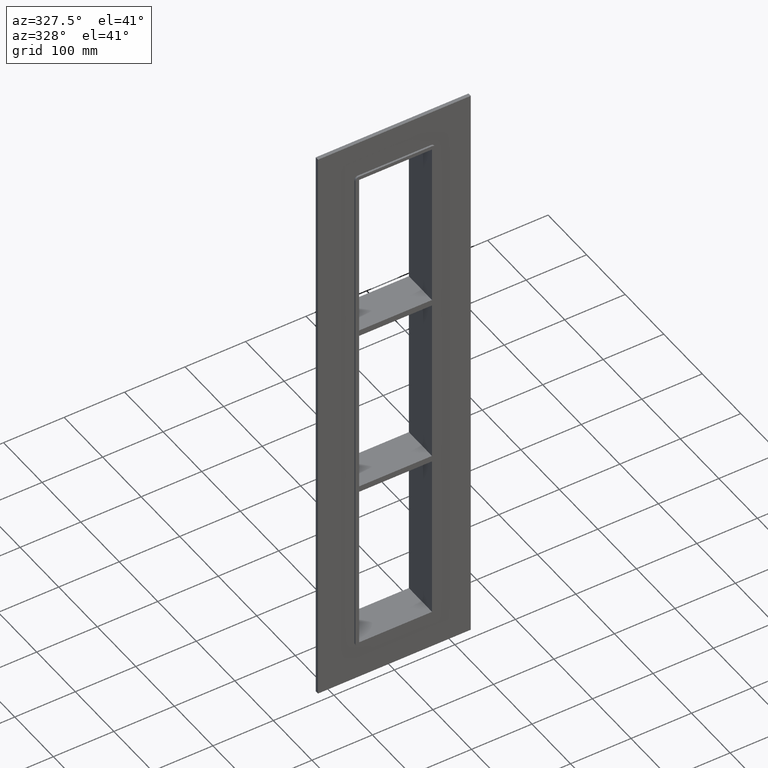
[diagram: clean part render]
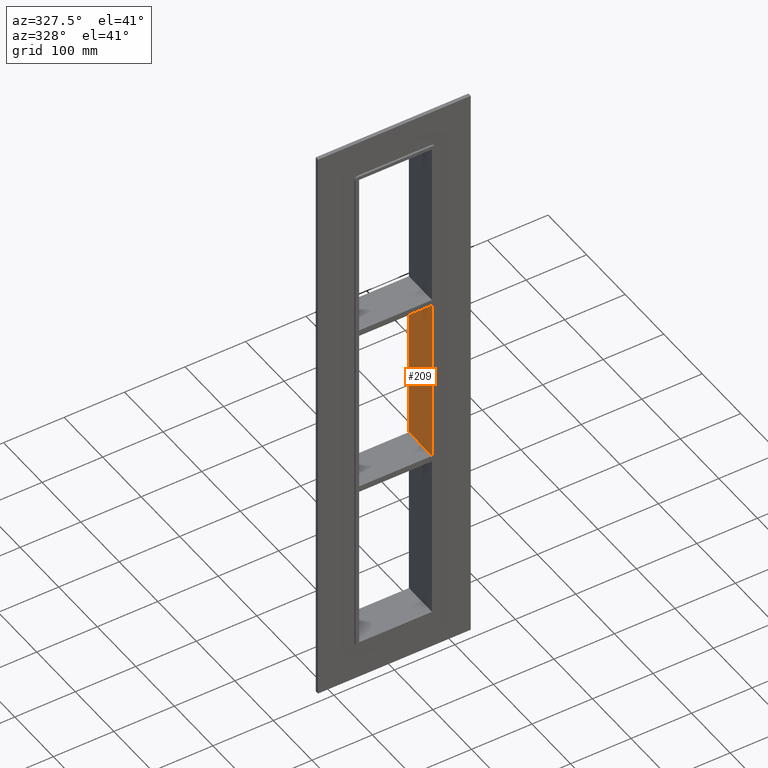
[diagram: same view with one face highlighted and labeled with its STEP entity id]
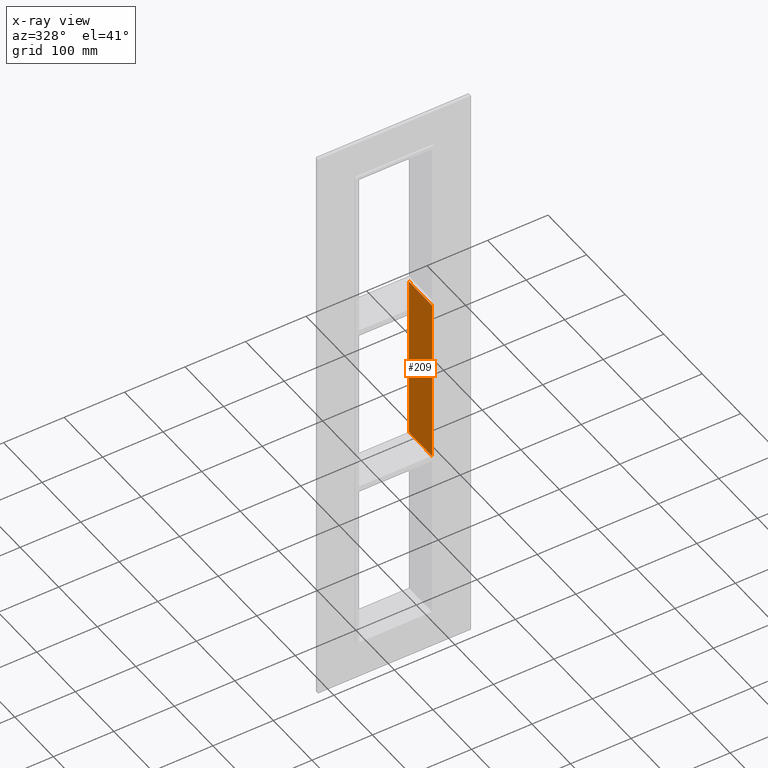
[diagram: x-ray of the same camera — body ghosted, the highlighted face saturated]
A machine part, auxiliary view. The second image highlights one B-rep face of the part: STEP entity #209.
The next image is the same camera in x-ray: the body ghosted, the highlighted face saturated — about 0% of this face is hidden behind the body in this view.
In plain terms, the highlighted planar face has unit normal (1, 0, 0).
Its self-contained STEP definition (entity closure, byte-faithful):
#73=CARTESIAN_POINT('',(60.249999999996362,-3.0,138.99999999999065));
#74=VERTEX_POINT('',#73);
#91=CARTESIAN_POINT('',(60.249999999996355,57.0,138.99999999999065));
#92=VERTEX_POINT('',#91);
#99=CARTESIAN_POINT('',(60.25,-3.0,138.99999999999068));
#100=DIRECTION('',(0.0,1.0,0.0));
#101=VECTOR('',#100,60.000000000000007);
#102=LINE('',#99,#101);
#103=EDGE_CURVE('',#74,#92,#102,.T.);
#179=CARTESIAN_POINT('',(60.25,0.0,427.0));
#180=DIRECTION('',(1.0,0.0,0.0));
#181=DIRECTION('',(0.0,0.0,-1.0));
#182=AXIS2_PLACEMENT_3D('',#179,#180,#181);
#183=PLANE('',#182);
#184=ORIENTED_EDGE('',*,*,#103,.T.);
#185=CARTESIAN_POINT('',(60.249999999999908,57.0,-139.00000000000006));
#186=VERTEX_POINT('',#185);
#187=CARTESIAN_POINT('',(60.25,57.0,-139.00000000000006));
#188=DIRECTION('',(0.0,0.0,1.0));
#189=VECTOR('',#188,277.99999999999073);
#190=LINE('',#187,#189);
#191=EDGE_CURVE('',#186,#92,#190,.T.);
#192=ORIENTED_EDGE('',*,*,#191,.F.);
#193=CARTESIAN_POINT('',(60.249999999999915,-3.0,-139.00000000000006));
#194=VERTEX_POINT('',#193);
#195=CARTESIAN_POINT('',(60.25,57.000000000000007,-139.00000000000006));
#196=DIRECTION('',(0.0,-1.0,0.0));
#197=VECTOR('',#196,60.000000000000007);
#198=LINE('',#195,#197);
#199=EDGE_CURVE('',#186,#194,#198,.T.);
#200=ORIENTED_EDGE('',*,*,#199,.T.);
#201=CARTESIAN_POINT('',(60.25,-3.0,138.99999999999068));
#202=DIRECTION('',(0.0,0.0,-1.0));
#203=VECTOR('',#202,277.99999999999073);
#204=LINE('',#201,#203);
#205=EDGE_CURVE('',#74,#194,#204,.T.);
#206=ORIENTED_EDGE('',*,*,#205,.F.);
#207=EDGE_LOOP('',(#184,#192,#200,#206));
#208=FACE_OUTER_BOUND('',#207,.T.);
#209=ADVANCED_FACE('',(#208),#183,.F.);